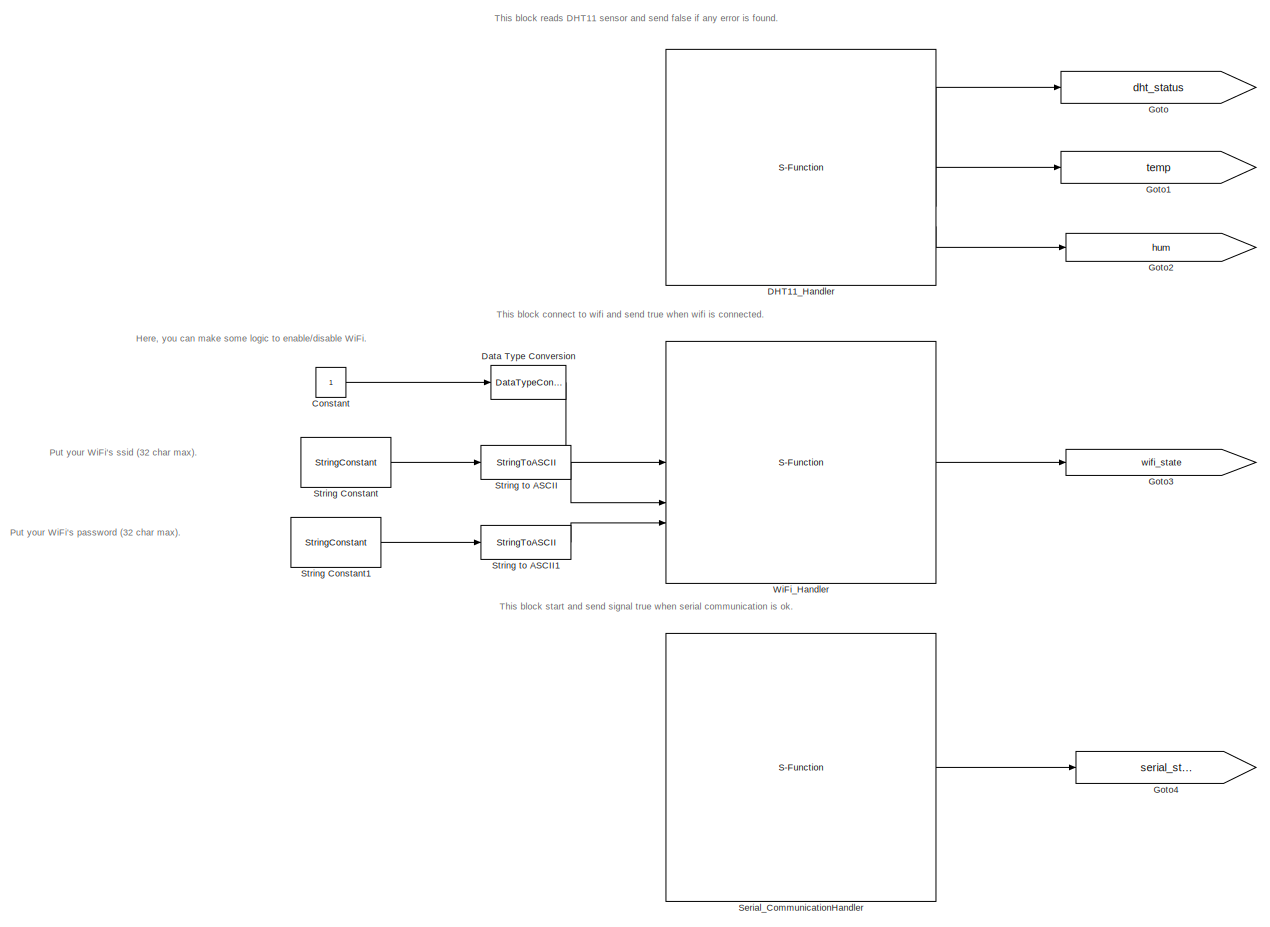
[diagram: root canvas - part 1/2, left side, full height]
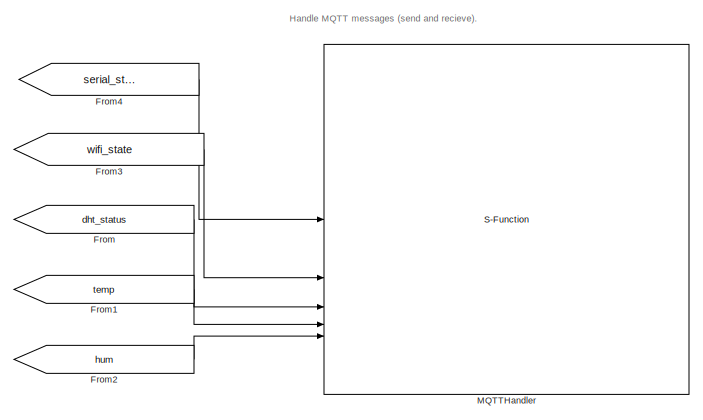
[diagram: root canvas - part 2/2, middle right region]
MODEL slx_8faaa0b8935b
KIND model
CONFIG AbsTol = auto
CONFIG EnableMultiTasking = off
CONFIG FixedStep = 0.005
CONFIG MaxStep = auto
CONFIG MinStep = auto
CONFIG RelTol = 1e-3
CONFIG SampleTimeConstraint = Unconstrained
CONFIG SolverName = FixedStepDiscrete
CONFIG StartTime = 0.0
CONFIG StopTime = 10.0
BLOCK [Constant] Constant
BLOCK [S-Function] DHT11_Handler
  CopyFcn = set_param(gcbh,'LinkStatus','none')
  EnableBusSupport = off
  FunctionName = block_dht11
  OpenFcn = sfunctionwizard(gcbh)
  SFcnIsStateOwnerBlock = off
  SFunctionDeploymentMode = off
  SFunctionModules = block_dht11_wrapper.cpp
BLOCK [DataTypeConversion] Data Type Conversion
  OutDataTypeStr = boolean
  RndMeth = Floor
  SaturateOnIntegerOverflow = off
BLOCK [From] From
  GotoTag = dht_status
BLOCK [From] From1
  GotoTag = temp
BLOCK [From] From2
  GotoTag = hum
BLOCK [From] From3
  GotoTag = wifi_state
BLOCK [From] From4
  GotoTag = serial_status
BLOCK [Goto] Goto
  GotoTag = dht_status
BLOCK [Goto] Goto1
  GotoTag = temp
BLOCK [Goto] Goto2
  GotoTag = hum
BLOCK [Goto] Goto3
  GotoTag = wifi_state
BLOCK [Goto] Goto4
  GotoTag = serial_status
BLOCK [S-Function] MQTTHandler
  CopyFcn = set_param(gcbh,'LinkStatus','none')
  EnableBusSupport = off
  FunctionName = block_mqtt
  OpenFcn = sfunctionwizard(gcbh)
  SFcnIsStateOwnerBlock = off
  SFunctionDeploymentMode = off
  SFunctionModules = block_mqtt_wrapper.cpp
BLOCK [S-Function] Serial_CommunicationHandler
  CopyFcn = set_param(gcbh,'LinkStatus','none')
  EnableBusSupport = off
  FunctionName = block_serial
  OpenFcn = sfunctionwizard(gcbh)
  SFcnIsStateOwnerBlock = off
  SFunctionDeploymentMode = off
  SFunctionModules = block_serial_wrapper.cpp
BLOCK [StringConstant] String Constant
  String = "ssid"
BLOCK [StringConstant] String Constant1
  String = "password"
BLOCK [StringToASCII] String to ASCII
  OutputVectorSize = 32
BLOCK [StringToASCII] String to ASCII1
  OutputVectorSize = 32
BLOCK [S-Function] WiFi_Handler
  CopyFcn = set_param(gcbh,'LinkStatus','none')
  EnableBusSupport = off
  FunctionName = block_wifi
  OpenFcn = sfunctionwizard(gcbh)
  SFcnIsStateOwnerBlock = off
  SFunctionDeploymentMode = off
  SFunctionModules = block_wifi_wrapper.cpp
ANNOTATION (root): Here, you can make some logic to enable/disable WiFi.
ANNOTATION (root): This block start and send signal true when serial communication is ok.
ANNOTATION (root): Put your WiFi's password (32 char max).
ANNOTATION (root): Put your WiFi's ssid (32 char max).
ANNOTATION (root): Handle MQTT messages (send and recieve).
ANNOTATION (root): This block connect to wifi and send true when wifi is connected.
ANNOTATION (root): This block reads DHT11 sensor and send false if any error is found.
LINE Constant:1 -> Data Type Conversion:1
LINE DHT11_Handler:1 -> Goto:1
LINE DHT11_Handler:2 -> Goto1:1
LINE DHT11_Handler:3 -> Goto2:1
LINE Data Type Conversion:1 -> WiFi_Handler:1
LINE From1:1 -> MQTTHandler:4
LINE From2:1 -> MQTTHandler:5
LINE From3:1 -> MQTTHandler:2
LINE From4:1 -> MQTTHandler:1
LINE From:1 -> MQTTHandler:3
LINE Serial_CommunicationHandler:1 -> Goto4:1
LINE String Constant1:1 -> String to ASCII1:1
LINE String Constant:1 -> String to ASCII:1
LINE String to ASCII1:1 -> WiFi_Handler:3
LINE String to ASCII:1 -> WiFi_Handler:2
LINE WiFi_Handler:1 -> Goto3:1
